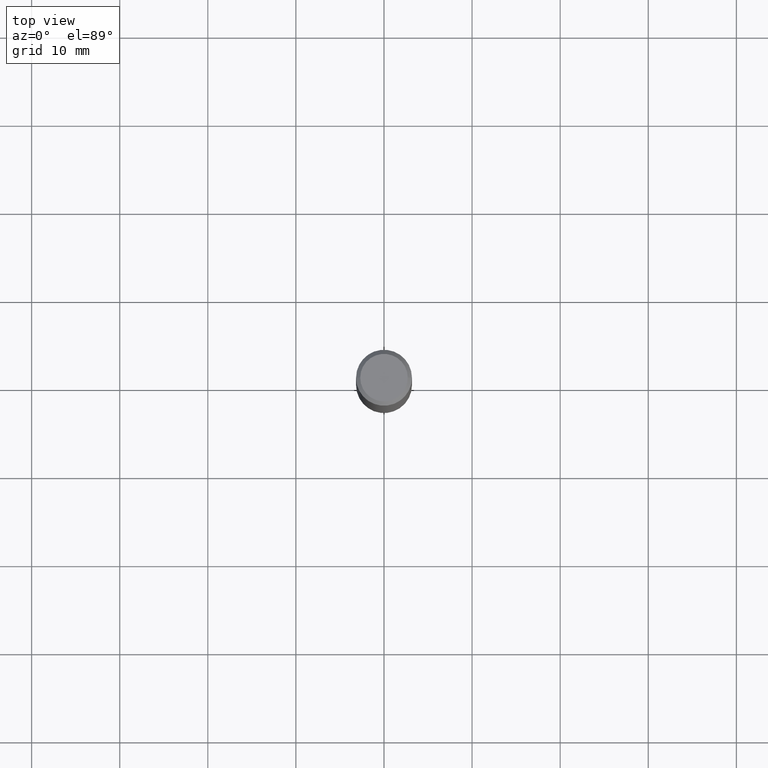
[diagram: clean part render]
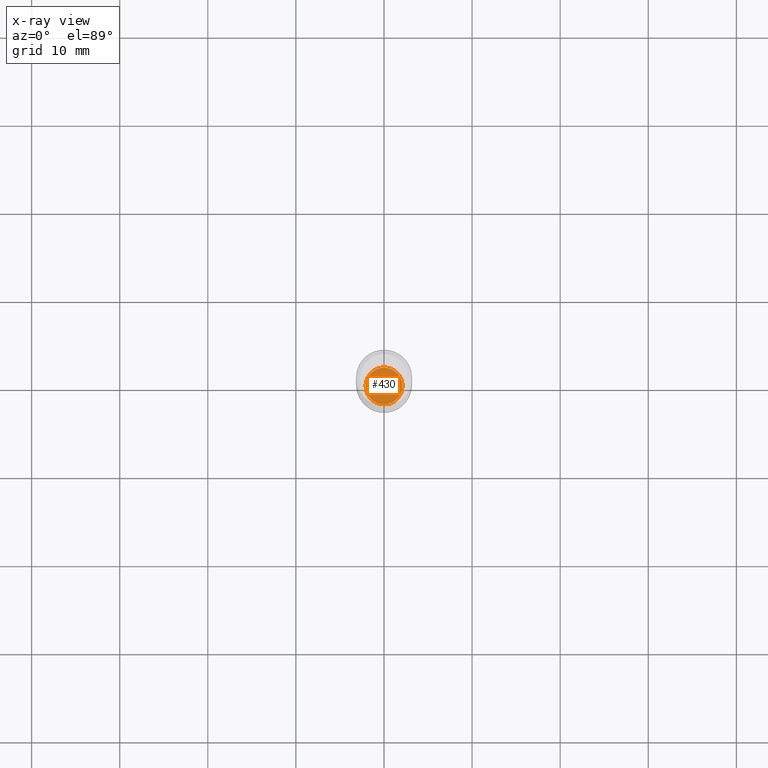
[diagram: x-ray — body ghosted, one internal face saturated and labeled with its STEP entity id]
A machine part, top view, then the same camera in x-ray: the body is ghosted and one INTERNAL B-rep face — a face not visible from any outside direction — is saturated and labeled: STEP entity #430.
In plain terms, the highlighted planar face has unit normal (-0, 0, 1).
Its self-contained STEP definition (entity closure, byte-faithful):
#5 = CARTESIAN_POINT ( 'NONE',  ( -0.08250000000000000389, -6.973701595758059246E-15, -2.165999999999999925 ) ) ;
#60 = AXIS2_PLACEMENT_3D ( 'NONE', #306, #180, #177 ) ;
#109 = DIRECTION ( 'NONE',  ( -2.438088387897960049E-29, 3.491481338843145188E-15, 1.000000000000000000 ) ) ;
#123 = CARTESIAN_POINT ( 'NONE',  ( 0.08250000000000000389, -8.138643000843369915E-15, -2.165999999999999925 ) ) ;
#144 = DIRECTION ( 'NONE',  ( -2.445468806185136597E-29, 3.491481338843145583E-15, 1.000000000000000000 ) ) ;
#161 = EDGE_CURVE ( 'NONE', #449, #287, #424, .T. ) ;
#177 = DIRECTION ( 'NONE',  ( 1.000000000000000000, -6.982962677686267499E-15, 0.000000000000000000 ) ) ;
#180 = DIRECTION ( 'NONE',  ( -2.445468806185136597E-29, 3.491481338843145583E-15, 1.000000000000000000 ) ) ;
#193 = DIRECTION ( 'NONE',  ( 1.000000000000000000, -6.982962677686265922E-15, 4.876176775795935793E-29 ) ) ;
#206 = AXIS2_PLACEMENT_3D ( 'NONE', #331, #144, #293 ) ;
#218 = EDGE_LOOP ( 'NONE', ( #469, #375 ) ) ;
#245 = CIRCLE ( 'NONE', #60, 0.08250000000000000389 ) ;
#253 = PLANE ( 'NONE',  #317 ) ;
#287 = VERTEX_POINT ( 'NONE', #5 ) ;
#293 = DIRECTION ( 'NONE',  ( 1.000000000000000000, -6.982962677686267499E-15, 0.000000000000000000 ) ) ;
#306 = CARTESIAN_POINT ( 'NONE',  ( 5.296885434197005931E-29, -7.562548579934253227E-15, -2.165999999999999925 ) ) ;
#317 = AXIS2_PLACEMENT_3D ( 'NONE', #401, #109, #193 ) ;
#331 = CARTESIAN_POINT ( 'NONE',  ( 5.296885434197005931E-29, -7.562548579934253227E-15, -2.165999999999999925 ) ) ;
#360 = EDGE_CURVE ( 'NONE', #287, #449, #245, .T. ) ;
#375 = ORIENTED_EDGE ( 'NONE', *, *, #360, .F. ) ;
#401 = CARTESIAN_POINT ( 'NONE',  ( 5.296885434197005931E-29, -7.562548579934253227E-15, -2.165999999999999925 ) ) ;
#424 = CIRCLE ( 'NONE', #206, 0.08250000000000000389 ) ;
#430 = ADVANCED_FACE ( 'NONE', ( #443 ), #253, .F. ) ;
#443 = FACE_OUTER_BOUND ( 'NONE', #218, .T. ) ;
#449 = VERTEX_POINT ( 'NONE', #123 ) ;
#469 = ORIENTED_EDGE ( 'NONE', *, *, #161, .F. ) ;